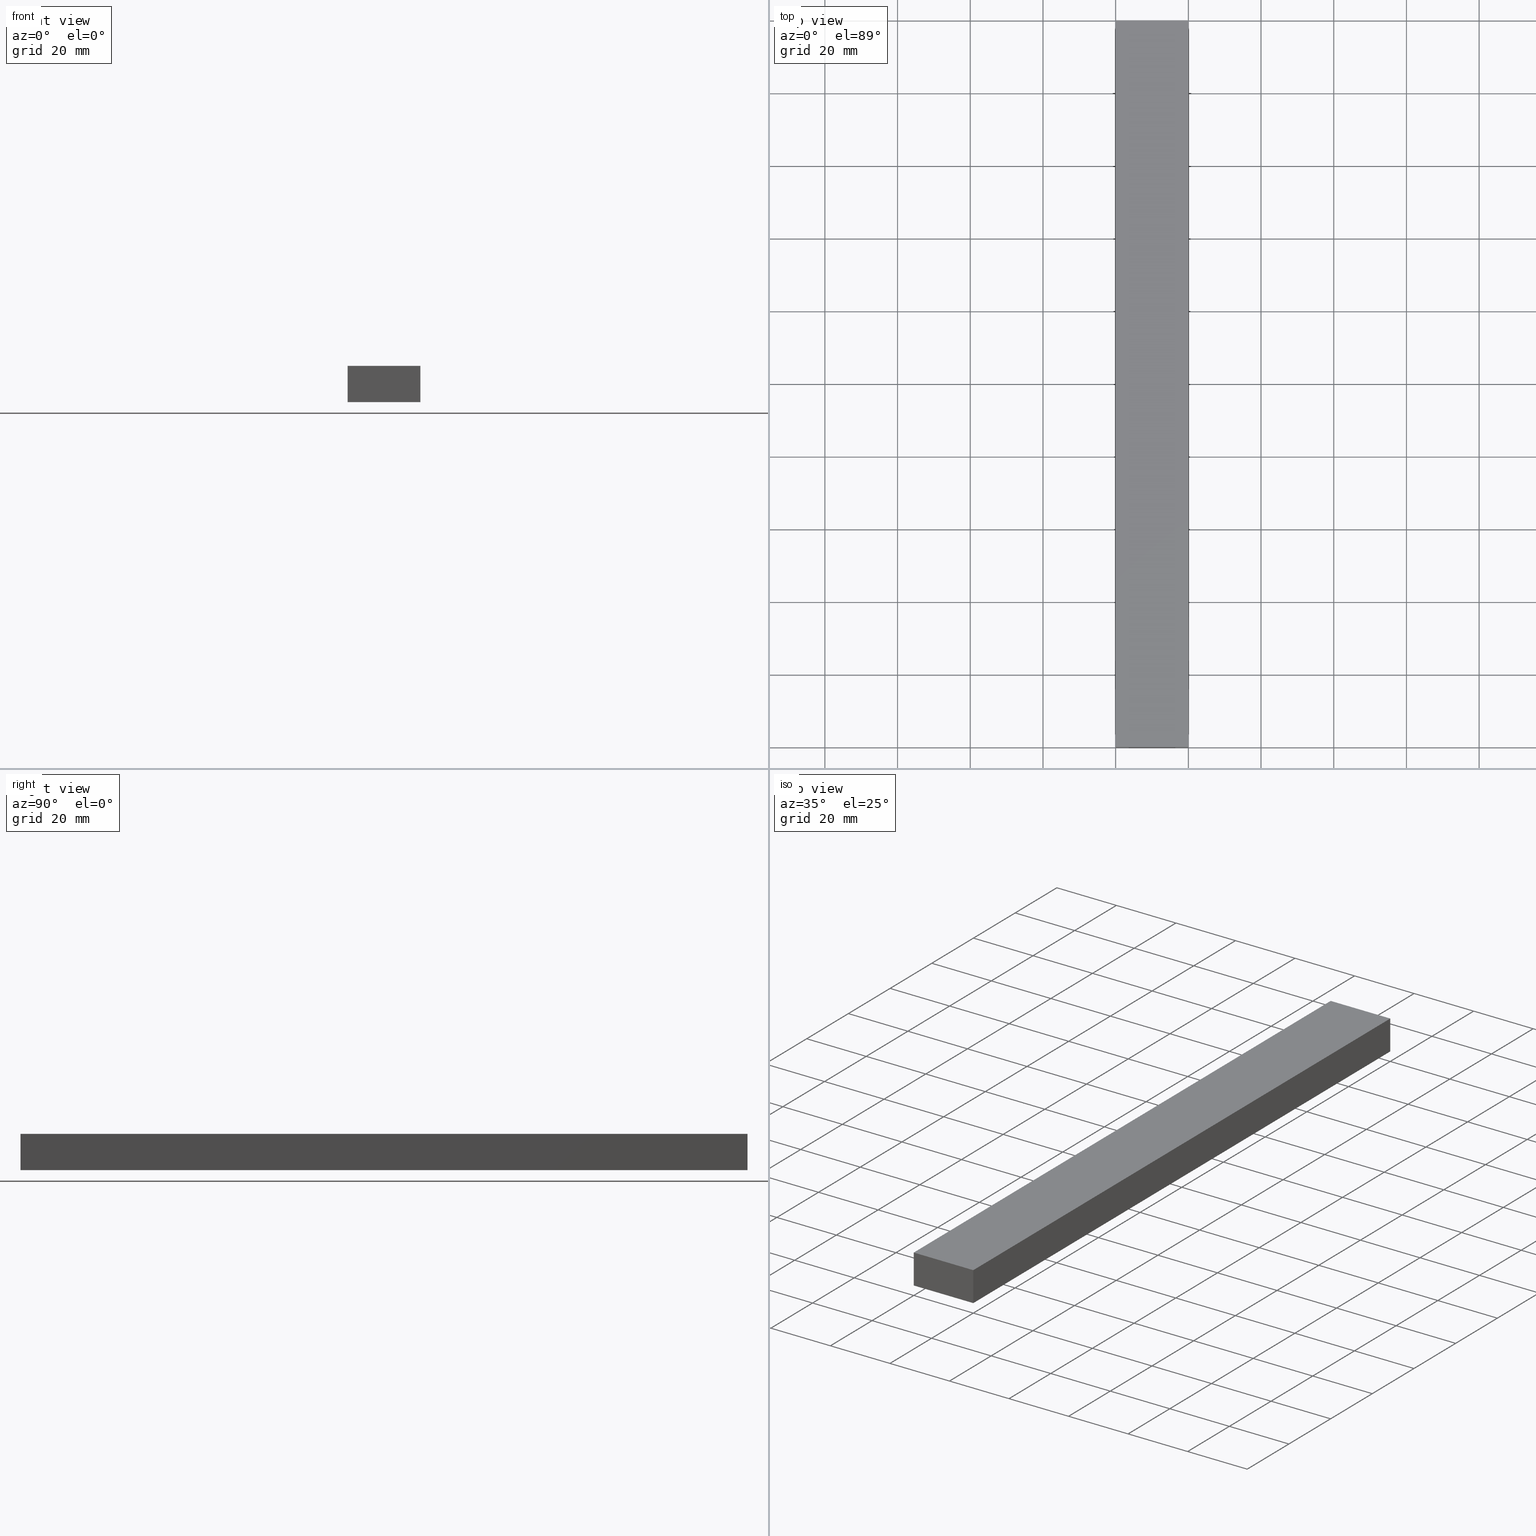
[diagram: canonical four-view strip — front | top / right | iso, engineering-drawing reading convention]
A machine part, canonical four-view strip (front | top / right | iso — engineering-drawing reading convention). The complete STEP part file that produces these views, byte-faithful:
ISO-10303-21;
HEADER;
FILE_DESCRIPTION (( 'STEP AP214' ),
    '1' );
FILE_NAME ('TM_340W_9.STEP',
    '2016-05-09T07:33:23',
    ( '' ),
    ( '' ),
    'SwSTEP 2.0',
    'SolidWorks 2015',
    '' );
FILE_SCHEMA (( 'AUTOMOTIVE_DESIGN' ));
ENDSEC;

DATA;
#1 = DIRECTION ( 'NONE',  ( -0.0000000000000000000, -0.0000000000000000000, 1.000000000000000000 ) ) ;
#2 = CARTESIAN_POINT ( 'NONE',  ( 0.0000000000000000000, 0.0000000000000000000, 0.0000000000000000000 ) ) ;
#3 = APPLICATION_PROTOCOL_DEFINITION ( 'draft international standard', 'automotive_design', 1998, #137 ) ;
#4 = VECTOR ( 'NONE', #185, 1000.000000000000000 ) ;
#5 = EDGE_LOOP ( 'NONE', ( #14, #72, #189, #198 ) ) ;
#6 = FACE_OUTER_BOUND ( 'NONE', #208, .T. ) ;
#7 = AXIS2_PLACEMENT_3D ( 'NONE', #2, #20, #154 ) ;
#8 = EDGE_LOOP ( 'NONE', ( #199, #177, #235, #212 ) ) ;
#9 = SURFACE_STYLE_USAGE ( .BOTH. , #124 ) ;
#10 = CARTESIAN_POINT ( 'NONE',  ( 0.0000000000000000000, 200.0000000000000000, 0.0000000000000000000 ) ) ;
#11 = DIRECTION ( 'NONE',  ( 1.000000000000000000, -0.0000000000000000000, -0.0000000000000000000 ) ) ;
#12 = APPLICATION_PROTOCOL_DEFINITION ( 'draft international standard', 'automotive_design', 1998, #115 ) ;
#13 = CARTESIAN_POINT ( 'NONE',  ( 0.0000000000000000000, 1000.000000000000000, 10.00000000000000000 ) ) ;
#14 = ORIENTED_EDGE ( 'NONE', *, *, #220, .F. ) ;
#15 = VECTOR ( 'NONE', #52, 1000.000000000000000 ) ;
#16 = CARTESIAN_POINT ( 'NONE',  ( 0.0000000000000000000, 0.0000000000000000000, 0.0000000000000000000 ) ) ;
#17 = PRESENTATION_LAYER_ASSIGNMENT (  '', '', ( #109 ) ) ;
#18 = LINE ( 'NONE', #152, #26 ) ;
#19 = VECTOR ( 'NONE', #11, 1000.000000000000000 ) ;
#20 = DIRECTION ( 'NONE',  ( 0.0000000000000000000, 0.0000000000000000000, 1.000000000000000000 ) ) ;
#21 = SHAPE_REPRESENTATION ( 'rubber foam', ( #7 ), #23 ) ;
#22 = FACE_OUTER_BOUND ( 'NONE', #8, .T. ) ;
#23 =( GEOMETRIC_REPRESENTATION_CONTEXT ( 3 ) GLOBAL_UNCERTAINTY_ASSIGNED_CONTEXT ( ( #74 ) ) GLOBAL_UNIT_ASSIGNED_CONTEXT ( ( #63, #193, #49 ) ) REPRESENTATION_CONTEXT ( 'NONE', 'WORKASPACE' ) );
#24 = SHAPE_REPRESENTATION ( 'TM_340W_9', ( #116, #93 ), #100 ) ;
#25 = AXIS2_PLACEMENT_3D ( 'NONE', #36, #143, #183 ) ;
#26 = VECTOR ( 'NONE', #133, 1000.000000000000000 ) ;
#27 = EDGE_CURVE ( 'NONE', #163, #148, #73, .T. ) ;
#28 = SHAPE_DEFINITION_REPRESENTATION ( #219, #24 ) ;
#29 = ADVANCED_BREP_SHAPE_REPRESENTATION ( '', ( #132, #7 ), #23 ) ;
#30 = CARTESIAN_POINT ( 'NONE',  ( 20.00000000000000000, 0.0000000000000000000, 0.0000000000000000000 ) ) ;
#31 = ORIENTED_EDGE ( 'NONE', *, *, #218, .F. ) ;
#32 = DIRECTION ( 'NONE',  ( -0.0000000000000000000, -0.0000000000000000000, 1.000000000000000000 ) ) ;
#33 = CARTESIAN_POINT ( 'NONE',  ( 0.0000000000000000000, 200.0000000000000000, 0.0000000000000000000 ) ) ;
#34 = CARTESIAN_POINT ( 'NONE',  ( 20.00000000000000000, 200.0000000000000000, 0.0000000000000000000 ) ) ;
#35 = APPLICATION_CONTEXT ( 'automotive_design' ) ;
#36 = CARTESIAN_POINT ( 'NONE',  ( 0.0000000000000000000, 1000.000000000000000, 10.00000000000000000 ) ) ;
#37 = VECTOR ( 'NONE', #184, 1000.000000000000000 ) ;
#38 = CARTESIAN_POINT ( 'NONE',  ( 0.0000000000000000000, 200.0000000000000000, 0.0000000000000000000 ) ) ;
#39 = PRODUCT_CONTEXT ( 'NONE', #98, 'mechanical' ) ;
#40 = CONTEXT_DEPENDENT_SHAPE_REPRESENTATION ( #196, #134 ) ;
#41 =( LENGTH_UNIT ( ) NAMED_UNIT ( * ) SI_UNIT ( .MILLI., .METRE. ) );
#42 = EDGE_CURVE ( 'NONE', #88, #103, #142, .T. ) ;
#43 =( GEOMETRIC_REPRESENTATION_CONTEXT ( 3 ) GLOBAL_UNCERTAINTY_ASSIGNED_CONTEXT ( ( #206 ) ) GLOBAL_UNIT_ASSIGNED_CONTEXT ( ( #96, #147, #138 ) ) REPRESENTATION_CONTEXT ( 'NONE', 'WORKASPACE' ) );
#44 = VERTEX_POINT ( 'NONE', #70 ) ;
#45 = FACE_OUTER_BOUND ( 'NONE', #5, .T. ) ;
#46 = ADVANCED_FACE ( 'NONE', ( #188 ), #186, .T. ) ;
#47 = PRODUCT_DEFINITION_SHAPE ( 'NONE', 'NONE',  #128 ) ;
#48 = CARTESIAN_POINT ( 'NONE',  ( 20.00000000000000000, 1000.000000000000000, 0.0000000000000000000 ) ) ;
#49 =( NAMED_UNIT ( * ) SI_UNIT ( $, .STERADIAN. ) SOLID_ANGLE_UNIT ( ) );
#50 = SHAPE_DEFINITION_REPRESENTATION ( #47, #21 ) ;
#51 = PRESENTATION_STYLE_ASSIGNMENT (( #9 ) ) ;
#52 = DIRECTION ( 'NONE',  ( -1.000000000000000000, -0.0000000000000000000, -0.0000000000000000000 ) ) ;
#53 = VECTOR ( 'NONE', #105, 1000.000000000000000 ) ;
#54 = ORIENTED_EDGE ( 'NONE', *, *, #27, .T. ) ;
#55 = PRESENTATION_STYLE_ASSIGNMENT (( #221 ) ) ;
#56 = DIRECTION ( 'NONE',  ( 0.0000000000000000000, 0.0000000000000000000, 1.000000000000000000 ) ) ;
#57 = DIRECTION ( 'NONE',  ( 1.000000000000000000, 0.0000000000000000000, 0.0000000000000000000 ) ) ;
#58 = ORIENTED_EDGE ( 'NONE', *, *, #64, .T. ) ;
#59 = EDGE_LOOP ( 'NONE', ( #202, #123, #141, #108 ) ) ;
#60 = DIRECTION ( 'NONE',  ( 1.000000000000000000, 0.0000000000000000000, 0.0000000000000000000 ) ) ;
#61 = LINE ( 'NONE', #30, #181 ) ;
#62 = AXIS2_PLACEMENT_3D ( 'NONE', #48, #135, #180 ) ;
#63 =( LENGTH_UNIT ( ) NAMED_UNIT ( * ) SI_UNIT ( .MILLI., .METRE. ) );
#64 = EDGE_CURVE ( 'NONE', #148, #103, #104, .T. ) ;
#65 = PLANE ( 'NONE',  #238 ) ;
#66 = ORIENTED_EDGE ( 'NONE', *, *, #162, .F. ) ;
#67 = DIRECTION ( 'NONE',  ( -1.000000000000000000, 0.0000000000000000000, 0.0000000000000000000 ) ) ;
#68 = VECTOR ( 'NONE', #191, 1000.000000000000000 ) ;
#69 = SURFACE_STYLE_FILL_AREA ( #89 ) ;
#70 = CARTESIAN_POINT ( 'NONE',  ( 0.0000000000000000000, 200.0000000000000000, 10.00000000000000000 ) ) ;
#71 = PRODUCT_CONTEXT ( 'NONE', #137, 'mechanical' ) ;
#72 = ORIENTED_EDGE ( 'NONE', *, *, #232, .F. ) ;
#73 = LINE ( 'NONE', #16, #68 ) ;
#74 = UNCERTAINTY_MEASURE_WITH_UNIT (LENGTH_MEASURE( 1.000000000000000100E-005 ), #63, 'distance_accuracy_value', 'NONE');
#75 = DIRECTION ( 'NONE',  ( -0.0000000000000000000, 1.000000000000000000, 0.0000000000000000000 ) ) ;
#76 = CARTESIAN_POINT ( 'NONE',  ( 0.0000000000000000000, 0.0000000000000000000, 0.0000000000000000000 ) ) ;
#77 = SURFACE_SIDE_STYLE ('',( #223 ) ) ;
#78 = ORIENTED_EDGE ( 'NONE', *, *, #64, .F. ) ;
#79 = AXIS2_PLACEMENT_3D ( 'NONE', #159, #140, #57 ) ;
#80 =( NAMED_UNIT ( * ) PLANE_ANGLE_UNIT ( ) SI_UNIT ( $, .RADIAN. ) );
#81 = ITEM_DEFINED_TRANSFORMATION ( 'NONE', 'NONE', #93,  #7 ) ;
#82 = PRESENTATION_LAYER_ASSIGNMENT (  '', '', ( #174 ) ) ;
#83 = EDGE_CURVE ( 'NONE', #88, #216, #178, .T. ) ;
#84 = ADVANCED_FACE ( 'NONE', ( #213 ), #158, .F. ) ;
#85 =( NAMED_UNIT ( * ) SI_UNIT ( $, .STERADIAN. ) SOLID_ANGLE_UNIT ( ) );
#86 = EDGE_CURVE ( 'NONE', #103, #117, #61, .T. ) ;
#87 = DIRECTION ( 'NONE',  ( 1.000000000000000000, -0.0000000000000000000, -0.0000000000000000000 ) ) ;
#88 = VERTEX_POINT ( 'NONE', #34 ) ;
#89 = FILL_AREA_STYLE ('',( #90 ) ) ;
#90 = FILL_AREA_STYLE_COLOUR ( '', #197 ) ;
#91 = PRODUCT_DEFINITION_CONTEXT ( 'detailed design', #115, 'design' ) ;
#92 = DIRECTION ( 'NONE',  ( 1.000000000000000000, 0.0000000000000000000, 0.0000000000000000000 ) ) ;
#93 = AXIS2_PLACEMENT_3D ( 'NONE', #207, #56, #92 ) ;
#94 = CARTESIAN_POINT ( 'NONE',  ( 20.00000000000000000, 200.0000000000000000, 0.0000000000000000000 ) ) ;
#95 = CARTESIAN_POINT ( 'NONE',  ( 0.0000000000000000000, 0.0000000000000000000, 0.0000000000000000000 ) ) ;
#96 =( LENGTH_UNIT ( ) NAMED_UNIT ( * ) SI_UNIT ( .MILLI., .METRE. ) );
#97 = AXIS2_PLACEMENT_3D ( 'NONE', #129, #75, #101 ) ;
#98 = APPLICATION_CONTEXT ( 'automotive_design' ) ;
#99 = CLOSED_SHELL ( 'NONE', ( #161, #176, #156, #46, #121, #84 ) ) ;
#100 =( GEOMETRIC_REPRESENTATION_CONTEXT ( 3 ) GLOBAL_UNCERTAINTY_ASSIGNED_CONTEXT ( ( #119 ) ) GLOBAL_UNIT_ASSIGNED_CONTEXT ( ( #41, #80, #210 ) ) REPRESENTATION_CONTEXT ( 'NONE', 'WORKASPACE' ) );
#101 = DIRECTION ( 'NONE',  ( 1.000000000000000000, 0.0000000000000000000, 0.0000000000000000000 ) ) ;
#102 = LINE ( 'NONE', #10, #209 ) ;
#103 = VERTEX_POINT ( 'NONE', #225 ) ;
#104 = LINE ( 'NONE', #192, #231 ) ;
#105 = DIRECTION ( 'NONE',  ( -1.000000000000000000, -0.0000000000000000000, -0.0000000000000000000 ) ) ;
#106 = VERTEX_POINT ( 'NONE', #166 ) ;
#107 = CARTESIAN_POINT ( 'NONE',  ( 20.00000000000000000, 0.0000000000000000000, 10.00000000000000000 ) ) ;
#108 = ORIENTED_EDGE ( 'NONE', *, *, #153, .T. ) ;
#109 = STYLED_ITEM ( 'NONE', ( #55 ), #29 ) ;
#110 = CARTESIAN_POINT ( 'NONE',  ( 20.00000000000000000, 1000.000000000000000, 10.00000000000000000 ) ) ;
#111 = DIRECTION ( 'NONE',  ( 0.0000000000000000000, 0.0000000000000000000, 1.000000000000000000 ) ) ;
#112 = CARTESIAN_POINT ( 'NONE',  ( 0.0000000000000000000, 200.0000000000000000, 10.00000000000000000 ) ) ;
#113 = ORIENTED_EDGE ( 'NONE', *, *, #83, .F. ) ;
#114 = FACE_OUTER_BOUND ( 'NONE', #205, .T. ) ;
#115 = APPLICATION_CONTEXT ( 'automotive_design' ) ;
#116 = AXIS2_PLACEMENT_3D ( 'NONE', #76, #111, #60 ) ;
#117 = VERTEX_POINT ( 'NONE', #107 ) ;
#118 = AXIS2_PLACEMENT_3D ( 'NONE', #110, #169, #226 ) ;
#119 = UNCERTAINTY_MEASURE_WITH_UNIT (LENGTH_MEASURE( 1.000000000000000100E-005 ), #41, 'distance_accuracy_value', 'NONE');
#120 = ORIENTED_EDGE ( 'NONE', *, *, #215, .F. ) ;
#121 = ADVANCED_FACE ( 'NONE', ( #114 ), #201, .T. ) ;
#122 = LINE ( 'NONE', #112, #53 ) ;
#123 = ORIENTED_EDGE ( 'NONE', *, *, #190, .F. ) ;
#124 = SURFACE_SIDE_STYLE ('',( #69 ) ) ;
#125 = DIRECTION ( 'NONE',  ( 0.0000000000000000000, -1.000000000000000000, 0.0000000000000000000 ) ) ;
#126 = DIRECTION ( 'NONE',  ( 1.000000000000000000, 0.0000000000000000000, 0.0000000000000000000 ) ) ;
#127 = LINE ( 'NONE', #150, #15 ) ;
#128 = PRODUCT_DEFINITION ( 'UNKNOWN', '', #195, #91 ) ;
#129 = CARTESIAN_POINT ( 'NONE',  ( 0.0000000000000000000, 0.0000000000000000000, 0.0000000000000000000 ) ) ;
#130 = MECHANICAL_DESIGN_GEOMETRIC_PRESENTATION_REPRESENTATION (  '', ( #109 ), #237 ) ;
#131 = UNCERTAINTY_MEASURE_WITH_UNIT (LENGTH_MEASURE( 1.000000000000000100E-005 ), #203, 'distance_accuracy_value', 'NONE');
#132 = MANIFOLD_SOLID_BREP ( '���߰�1', #99 ) ;
#133 = DIRECTION ( 'NONE',  ( 0.0000000000000000000, -1.000000000000000000, 0.0000000000000000000 ) ) ;
#134 = PRODUCT_DEFINITION_SHAPE ( 'NONE', 'NONE',  #239 ) ;
#135 = DIRECTION ( 'NONE',  ( 1.000000000000000000, 0.0000000000000000000, 0.0000000000000000000 ) ) ;
#136 = LINE ( 'NONE', #146, #4 ) ;
#137 = APPLICATION_CONTEXT ( 'automotive_design' ) ;
#138 =( NAMED_UNIT ( * ) SI_UNIT ( $, .STERADIAN. ) SOLID_ANGLE_UNIT ( ) );
#139 = MECHANICAL_DESIGN_GEOMETRIC_PRESENTATION_REPRESENTATION (  '', ( #174 ), #43 ) ;
#140 = DIRECTION ( 'NONE',  ( 0.0000000000000000000, 0.0000000000000000000, 1.000000000000000000 ) ) ;
#141 = ORIENTED_EDGE ( 'NONE', *, *, #215, .T. ) ;
#142 = LINE ( 'NONE', #200, #171 ) ;
#143 = DIRECTION ( 'NONE',  ( -1.000000000000000000, 0.0000000000000000000, 0.0000000000000000000 ) ) ;
#144 = SHAPE_REPRESENTATION_RELATIONSHIP ( 'NONE' , 'NONE' ,  #21, #29 ) ;
#145 = FILL_AREA_STYLE ('',( #236 ) ) ;
#146 = CARTESIAN_POINT ( 'NONE',  ( 20.00000000000000000, 1000.000000000000000, 10.00000000000000000 ) ) ;
#147 =( NAMED_UNIT ( * ) PLANE_ANGLE_UNIT ( ) SI_UNIT ( $, .RADIAN. ) );
#148 = VERTEX_POINT ( 'NONE', #95 ) ;
#149 = CARTESIAN_POINT ( 'NONE',  ( 0.0000000000000000000, 0.0000000000000000000, 10.00000000000000000 ) ) ;
#150 = CARTESIAN_POINT ( 'NONE',  ( 0.0000000000000000000, 0.0000000000000000000, 10.00000000000000000 ) ) ;
#151 = APPLICATION_PROTOCOL_DEFINITION ( 'draft international standard', 'automotive_design', 1998, #98 ) ;
#152 = CARTESIAN_POINT ( 'NONE',  ( 0.0000000000000000000, 1000.000000000000000, 0.0000000000000000000 ) ) ;
#153 = EDGE_CURVE ( 'NONE', #106, #148, #18, .T. ) ;
#154 = DIRECTION ( 'NONE',  ( 1.000000000000000000, 0.0000000000000000000, 0.0000000000000000000 ) ) ;
#155 =( NAMED_UNIT ( * ) PLANE_ANGLE_UNIT ( ) SI_UNIT ( $, .RADIAN. ) );
#156 = ADVANCED_FACE ( 'NONE', ( #45 ), #167, .T. ) ;
#157 = ORIENTED_EDGE ( 'NONE', *, *, #86, .T. ) ;
#158 = PLANE ( 'NONE',  #97 ) ;
#159 = CARTESIAN_POINT ( 'NONE',  ( 0.0000000000000000000, 0.0000000000000000000, 0.0000000000000000000 ) ) ;
#160 = PRODUCT_DEFINITION ( 'UNKNOWN', '', #168, #175 ) ;
#161 = ADVANCED_FACE ( 'NONE', ( #6 ), #65, .T. ) ;
#162 = EDGE_CURVE ( 'NONE', #216, #44, #122, .T. ) ;
#163 = VERTEX_POINT ( 'NONE', #149 ) ;
#164 = DIRECTION ( 'NONE',  ( -0.0000000000000000000, 1.000000000000000000, 0.0000000000000000000 ) ) ;
#165 = EDGE_LOOP ( 'NONE', ( #58, #157, #194, #54 ) ) ;
#166 = CARTESIAN_POINT ( 'NONE',  ( 0.0000000000000000000, 200.0000000000000000, 0.0000000000000000000 ) ) ;
#167 = PLANE ( 'NONE',  #118 ) ;
#168 = PRODUCT_DEFINITION_FORMATION_WITH_SPECIFIED_SOURCE ( 'ANY', '', #217, .NOT_KNOWN. ) ;
#169 = DIRECTION ( 'NONE',  ( 0.0000000000000000000, 0.0000000000000000000, 1.000000000000000000 ) ) ;
#170 = DIRECTION ( 'NONE',  ( 0.0000000000000000000, 0.0000000000000000000, -1.000000000000000000 ) ) ;
#171 = VECTOR ( 'NONE', #125, 1000.000000000000000 ) ;
#172 = CARTESIAN_POINT ( 'NONE',  ( 0.0000000000000000000, 1000.000000000000000, 0.0000000000000000000 ) ) ;
#173 = PLANE ( 'NONE',  #62 ) ;
#174 = STYLED_ITEM ( 'NONE', ( #51 ), #132 ) ;
#175 = PRODUCT_DEFINITION_CONTEXT ( 'detailed design', #35, 'design' ) ;
#176 = ADVANCED_FACE ( 'NONE', ( #22 ), #173, .T. ) ;
#177 = ORIENTED_EDGE ( 'NONE', *, *, #42, .F. ) ;
#178 = LINE ( 'NONE', #94, #182 ) ;
#179 = PRODUCT_RELATED_PRODUCT_CATEGORY ( 'part', '', ( #217 ) ) ;
#180 = DIRECTION ( 'NONE',  ( 0.0000000000000000000, 0.0000000000000000000, -1.000000000000000000 ) ) ;
#181 = VECTOR ( 'NONE', #1, 1000.000000000000000 ) ;
#182 = VECTOR ( 'NONE', #32, 1000.000000000000000 ) ;
#183 = DIRECTION ( 'NONE',  ( 0.0000000000000000000, 0.0000000000000000000, 1.000000000000000000 ) ) ;
#184 = DIRECTION ( 'NONE',  ( 0.0000000000000000000, -1.000000000000000000, 0.0000000000000000000 ) ) ;
#185 = DIRECTION ( 'NONE',  ( 0.0000000000000000000, -1.000000000000000000, 0.0000000000000000000 ) ) ;
#186 = PLANE ( 'NONE',  #25 ) ;
#187 = CARTESIAN_POINT ( 'NONE',  ( 20.00000000000000000, 200.0000000000000000, 10.00000000000000000 ) ) ;
#188 = FACE_OUTER_BOUND ( 'NONE', #59, .T. ) ;
#189 = ORIENTED_EDGE ( 'NONE', *, *, #162, .T. ) ;
#190 = EDGE_CURVE ( 'NONE', #44, #163, #228, .T. ) ;
#191 = DIRECTION ( 'NONE',  ( -0.0000000000000000000, -0.0000000000000000000, -1.000000000000000000 ) ) ;
#192 = CARTESIAN_POINT ( 'NONE',  ( 0.0000000000000000000, 0.0000000000000000000, 0.0000000000000000000 ) ) ;
#193 =( NAMED_UNIT ( * ) PLANE_ANGLE_UNIT ( ) SI_UNIT ( $, .RADIAN. ) );
#194 = ORIENTED_EDGE ( 'NONE', *, *, #220, .T. ) ;
#195 = PRODUCT_DEFINITION_FORMATION_WITH_SPECIFIED_SOURCE ( 'ANY', '', #230, .NOT_KNOWN. ) ;
#196 =( REPRESENTATION_RELATIONSHIP ('NONE','NONE', #24, #21 ) REPRESENTATION_RELATIONSHIP_WITH_TRANSFORMATION ( #81 )SHAPE_REPRESENTATION_RELATIONSHIP( ) );
#197 = COLOUR_RGB ( '',0.7921568627450980000, 0.8196078431372548800, 0.9333333333333333500 ) ;
#198 = ORIENTED_EDGE ( 'NONE', *, *, #190, .T. ) ;
#199 = ORIENTED_EDGE ( 'NONE', *, *, #86, .F. ) ;
#200 = CARTESIAN_POINT ( 'NONE',  ( 20.00000000000000000, 1000.000000000000000, 0.0000000000000000000 ) ) ;
#201 = PLANE ( 'NONE',  #214 ) ;
#202 = ORIENTED_EDGE ( 'NONE', *, *, #27, .F. ) ;
#203 =( LENGTH_UNIT ( ) NAMED_UNIT ( * ) SI_UNIT ( .MILLI., .METRE. ) );
#204 = PRODUCT_RELATED_PRODUCT_CATEGORY ( 'part', '', ( #230 ) ) ;
#205 = EDGE_LOOP ( 'NONE', ( #31, #120, #66, #113 ) ) ;
#206 = UNCERTAINTY_MEASURE_WITH_UNIT (LENGTH_MEASURE( 1.000000000000000100E-005 ), #96, 'distance_accuracy_value', 'NONE');
#207 = CARTESIAN_POINT ( 'NONE',  ( 0.0000000000000000000, 0.0000000000000000000, 0.0000000000000000000 ) ) ;
#208 = EDGE_LOOP ( 'NONE', ( #78, #227, #224, #233 ) ) ;
#209 = VECTOR ( 'NONE', #229, 1000.000000000000000 ) ;
#210 =( NAMED_UNIT ( * ) SI_UNIT ( $, .STERADIAN. ) SOLID_ANGLE_UNIT ( ) );
#211 = LINE ( 'NONE', #33, #19 ) ;
#212 = ORIENTED_EDGE ( 'NONE', *, *, #232, .T. ) ;
#213 = FACE_OUTER_BOUND ( 'NONE', #165, .T. ) ;
#214 = AXIS2_PLACEMENT_3D ( 'NONE', #38, #164, #126 ) ;
#215 = EDGE_CURVE ( 'NONE', #44, #106, #102, .T. ) ;
#216 = VERTEX_POINT ( 'NONE', #187 ) ;
#217 = PRODUCT ( 'TM_340W_9', 'TM_340W_9', '', ( #39 ) ) ;
#218 = EDGE_CURVE ( 'NONE', #106, #88, #211, .T. ) ;
#219 = PRODUCT_DEFINITION_SHAPE ( 'NONE', 'NONE',  #160 ) ;
#220 = EDGE_CURVE ( 'NONE', #117, #163, #127, .T. ) ;
#221 = SURFACE_STYLE_USAGE ( .BOTH. , #77 ) ;
#222 = APPLICATION_PROTOCOL_DEFINITION ( 'draft international standard', 'automotive_design', 1998, #35 ) ;
#223 = SURFACE_STYLE_FILL_AREA ( #145 ) ;
#224 = ORIENTED_EDGE ( 'NONE', *, *, #218, .T. ) ;
#225 = CARTESIAN_POINT ( 'NONE',  ( 20.00000000000000000, 0.0000000000000000000, 0.0000000000000000000 ) ) ;
#226 = DIRECTION ( 'NONE',  ( 1.000000000000000000, 0.0000000000000000000, 0.0000000000000000000 ) ) ;
#227 = ORIENTED_EDGE ( 'NONE', *, *, #153, .F. ) ;
#228 = LINE ( 'NONE', #13, #37 ) ;
#229 = DIRECTION ( 'NONE',  ( -0.0000000000000000000, -0.0000000000000000000, -1.000000000000000000 ) ) ;
#230 = PRODUCT ( 'rubber foam', 'rubber foam', '', ( #71 ) ) ;
#231 = VECTOR ( 'NONE', #87, 1000.000000000000000 ) ;
#232 = EDGE_CURVE ( 'NONE', #216, #117, #136, .T. ) ;
#233 = ORIENTED_EDGE ( 'NONE', *, *, #42, .T. ) ;
#234 = COLOUR_RGB ( '',0.7921568627450980000, 0.8196078431372548800, 0.9333333333333333500 ) ;
#235 = ORIENTED_EDGE ( 'NONE', *, *, #83, .T. ) ;
#236 = FILL_AREA_STYLE_COLOUR ( '', #234 ) ;
#237 =( GEOMETRIC_REPRESENTATION_CONTEXT ( 3 ) GLOBAL_UNCERTAINTY_ASSIGNED_CONTEXT ( ( #131 ) ) GLOBAL_UNIT_ASSIGNED_CONTEXT ( ( #203, #155, #85 ) ) REPRESENTATION_CONTEXT ( 'NONE', 'WORKASPACE' ) );
#238 = AXIS2_PLACEMENT_3D ( 'NONE', #172, #170, #67 ) ;
#239 = NEXT_ASSEMBLY_USAGE_OCCURRENCE ( 'NAUO1', ' ', ' ', #160, #128, $ ) ;
ENDSEC;
END-ISO-10303-21;
